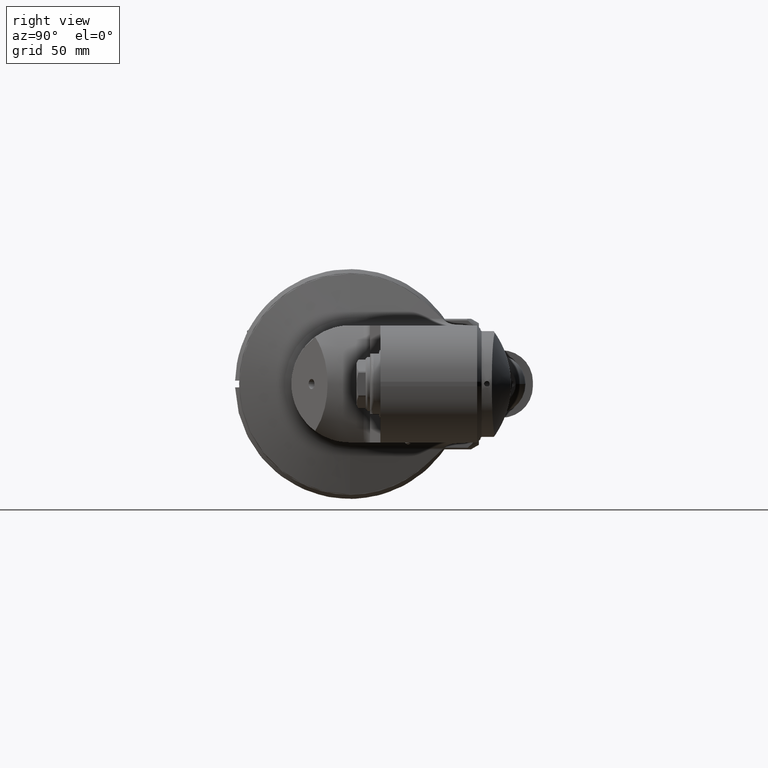
[diagram: clean part render]
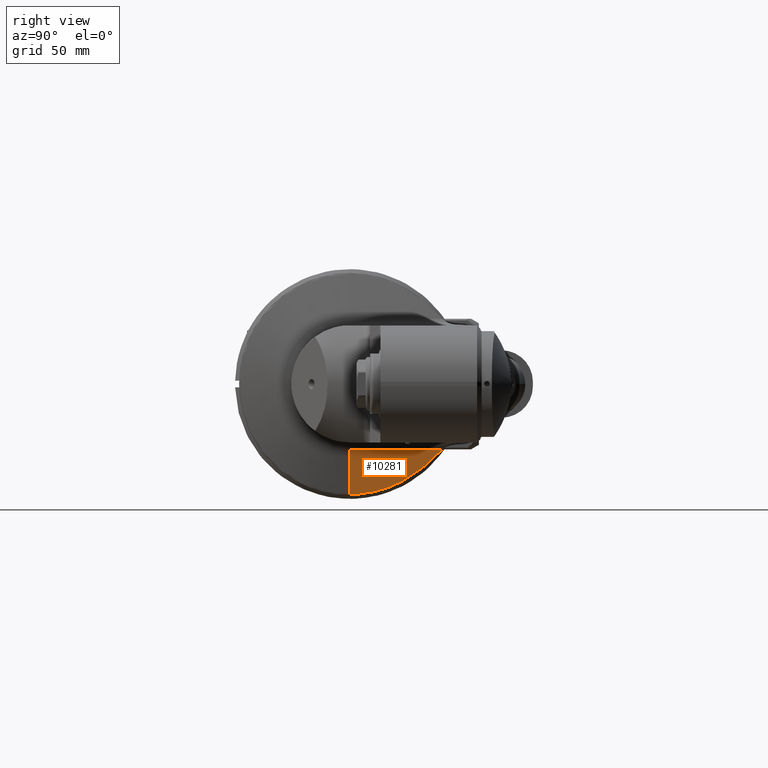
[diagram: same view with one face highlighted and labeled with its STEP entity id]
A machine part, right view. The second image highlights one B-rep face of the part: STEP entity #10281.
In plain terms, the highlighted planar face has unit normal (0.9659, 0, -0.2588).
Its self-contained STEP definition (entity closure, byte-faithful):
#13=ELLIPSE('',#11373,50.7285328400937,49.);
#14=ELLIPSE('',#11374,50.7285328400937,49.);
#813=B_SPLINE_CURVE_WITH_KNOTS('',3,(#47191,#47192,#47193,#47194,#47195,
#47196,#47197,#47198,#47199,#47200,#47201,#47202),.UNSPECIFIED.,.F.,.F.,
(4,2,2,2,2,4),(2.34345358198581,2.45601939279041,2.92809522366842,3.66740707638824,
4.40671892910806,4.48299192626407),.UNSPECIFIED.);
#997=PLANE('',#11419);
#1576=FACE_OUTER_BOUND('',#2259,.T.);
#2259=EDGE_LOOP('',(#8595,#8596,#8597,#8598,#8599));
#2938=LINE('',#46931,#3628);
#2980=LINE('',#47156,#3670);
#3628=VECTOR('',#13505,20.7420441975205);
#3670=VECTOR('',#13623,41.13376733206);
#5005=VERTEX_POINT('',#46915);
#5006=VERTEX_POINT('',#46916);
#5007=VERTEX_POINT('',#46919);
#5011=VERTEX_POINT('',#46928);
#5074=VERTEX_POINT('',#47155);
#6234=EDGE_CURVE('',#5005,#5006,#13,.T.);
#6236=EDGE_CURVE('',#5006,#5007,#14,.T.);
#6242=EDGE_CURVE('',#5007,#5011,#2938,.T.);
#6320=EDGE_CURVE('',#5011,#5074,#2980,.T.);
#6324=EDGE_CURVE('',#5005,#5074,#813,.T.);
#8595=ORIENTED_EDGE('',*,*,#6234,.F.);
#8596=ORIENTED_EDGE('',*,*,#6324,.T.);
#8597=ORIENTED_EDGE('',*,*,#6320,.F.);
#8598=ORIENTED_EDGE('',*,*,#6242,.F.);
#8599=ORIENTED_EDGE('',*,*,#6236,.F.);
#10281=ADVANCED_FACE('',(#1576),#997,.T.);
#11373=AXIS2_PLACEMENT_3D('',#46917,#13489,#13490);
#11374=AXIS2_PLACEMENT_3D('',#46920,#13492,#13493);
#11419=AXIS2_PLACEMENT_3D('',#47203,#13626,#13627);
#13489=DIRECTION('center_axis',(-0.965925826289076,0.,0.258819045102493));
#13490=DIRECTION('ref_axis',(0.258819045102493,-2.18855733148206E-17,0.965925826289076));
#13492=DIRECTION('center_axis',(-0.965925826289076,0.,0.258819045102493));
#13493=DIRECTION('ref_axis',(0.258819045102493,-2.18855733148206E-17,0.965925826289076));
#13505=DIRECTION('',(0.258819045102493,1.00751924200297E-13,0.965925826289076));
#13623=DIRECTION('',(-5.103589213835E-13,1.,-1.25080688771E-12));
#13626=DIRECTION('center_axis',(0.965925826289076,0.,-0.258819045102493));
#13627=DIRECTION('ref_axis',(0.258819045102493,0.,0.965925826289076));
#46915=CARTESIAN_POINT('',(16.39603811104,23.6340438745,-42.92355961635));
#46916=CARTESIAN_POINT('',(14.8178225684795,4.27063139463554,-48.8135402064955));
#46917=CARTESIAN_POINT('Origin',(27.8973712465126,0.,0.));
#46919=CARTESIAN_POINT('',(14.76786081739,-2.09277040373E-12,-49.));
#46920=CARTESIAN_POINT('Origin',(27.8973712465126,0.,0.));
#46928=CARTESIAN_POINT('',(20.13629689006,0.,-28.96472381959));
#46931=CARTESIAN_POINT('',(14.76786081739,-2.09277040373E-12,-49.));
#47155=CARTESIAN_POINT('',(20.13629689004,41.13376733206,-28.96472381964));
#47156=CARTESIAN_POINT('',(20.13629689006,0.,-28.96472381959));
#47191=CARTESIAN_POINT('Ctrl Pts',(16.396038111044,23.6340438744988,-42.923559616349));
#47192=CARTESIAN_POINT('Ctrl Pts',(16.4485785817465,23.9901661993081,-42.7274759102338));
#47193=CARTESIAN_POINT('Ctrl Pts',(16.5023995383759,24.3458774575163,-42.526613365581));
#47194=CARTESIAN_POINT('Ctrl Pts',(16.7870757434277,26.1815123432364,-41.4641873046217));
#47195=CARTESIAN_POINT('Ctrl Pts',(17.0352324510884,27.6216780380033,-40.5380538633929));
#47196=CARTESIAN_POINT('Ctrl Pts',(17.6455080707513,30.8996815752765,-38.2604742441899));
#47197=CARTESIAN_POINT('Ctrl Pts',(18.086638456948,33.0027301826983,-36.6141532301413));
#47198=CARTESIAN_POINT('Ctrl Pts',(19.027117789358,37.0102527281327,-33.1042365781182));
#47199=CARTESIAN_POINT('Ctrl Pts',(19.5259603811612,38.9165001568312,-31.2425306805289));
#47200=CARTESIAN_POINT('Ctrl Pts',(20.0383023424989,40.7799125698412,-29.3304444499671));
#47201=CARTESIAN_POINT('Ctrl Pts',(20.0869729142843,40.9560523358633,-29.1488034032305));
#47202=CARTESIAN_POINT('Ctrl Pts',(20.1362968900483,41.1337673320661,-28.9647238196481));
#47203=CARTESIAN_POINT('Origin',(19.82571403594,0.,-30.12383481114));